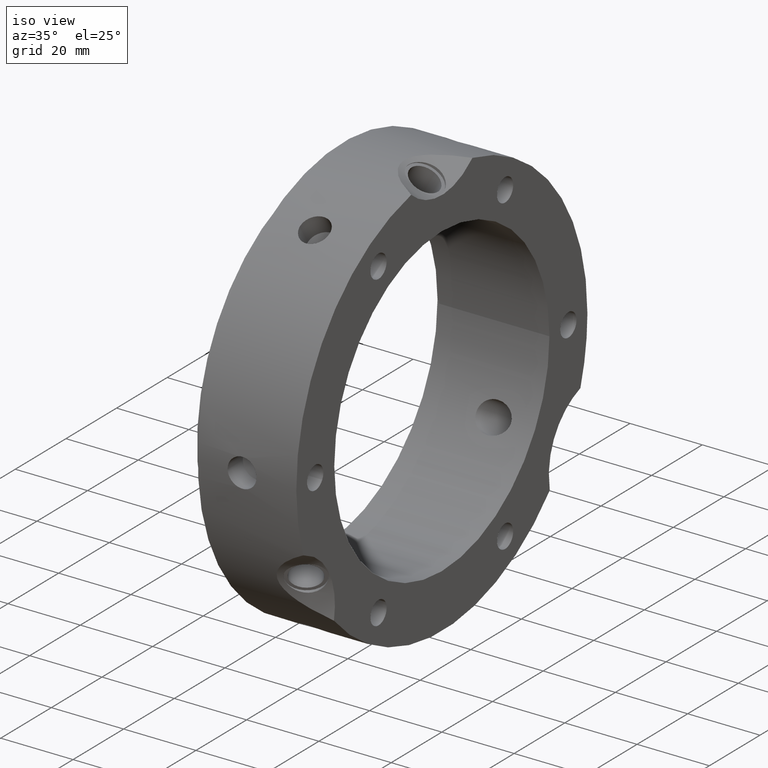
[diagram: clean part render]
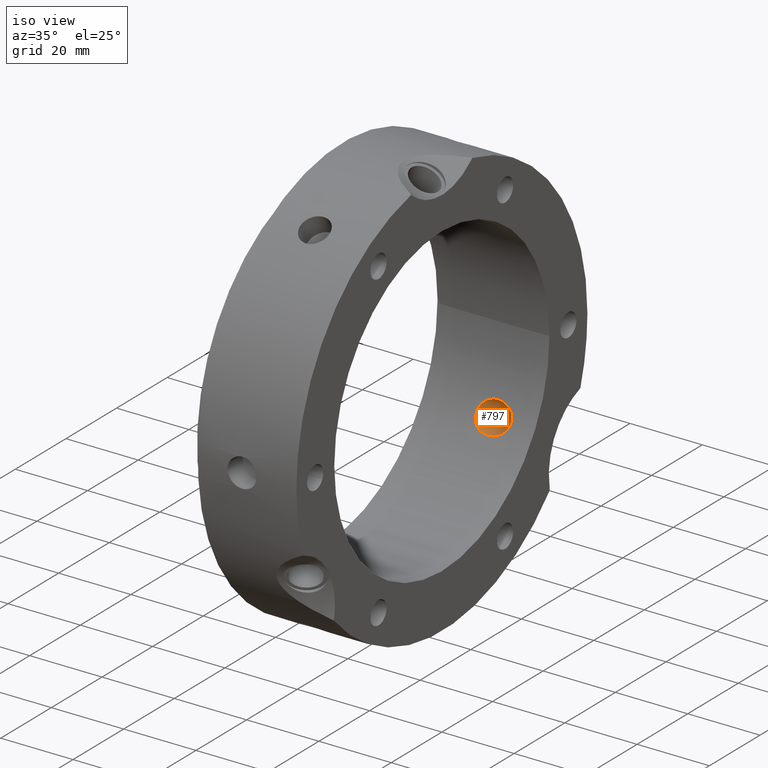
[diagram: same view with one face highlighted and labeled with its STEP entity id]
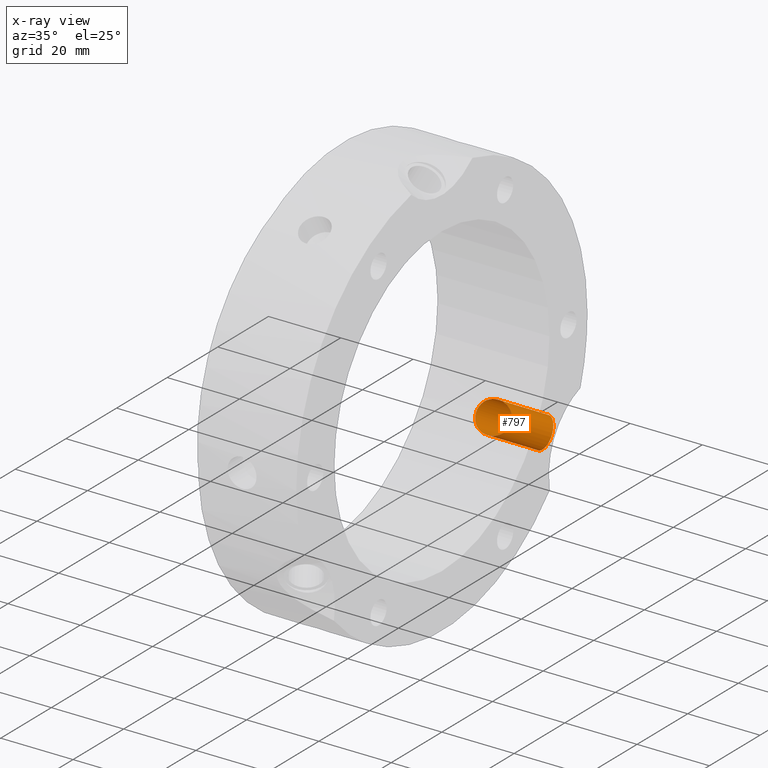
[diagram: x-ray of the same camera — body ghosted, the highlighted face saturated]
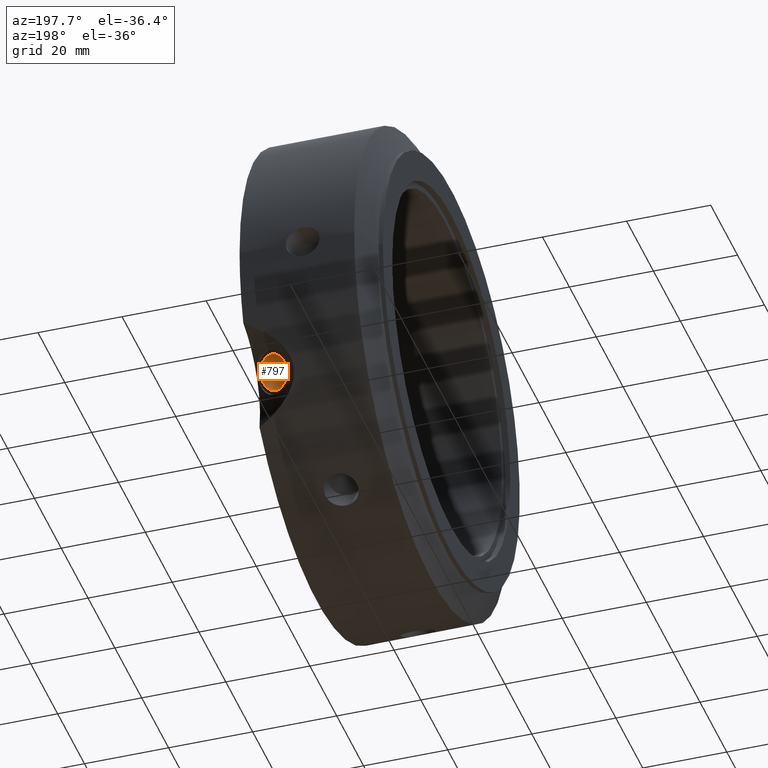
[diagram: same view with one face highlighted and labeled with its STEP entity id]
A machine part, iso view. The second image highlights one B-rep face of the part: STEP entity #797.
The next image is the same camera in x-ray: the body ghosted, the highlighted face saturated — about 0% of this face is hidden behind the body in this view.
A second angle (auxiliary view) of the same face is appended — the face is thin or edge-on in the first view.
In plain terms, the highlighted cylindrical surface (bore or boss wall) has radius 4.188 mm, axis along (0.5, 0.75, -0.433).
Its self-contained STEP definition (entity closure, byte-faithful):
#740=CARTESIAN_POINT('',(22.750000000000018,40.124999999999972,-23.16617955123375));
#741=DIRECTION('',(0.500000000000001,0.75,-0.43301270189222));
#742=DIRECTION('',(0.0,-0.5,-0.866025403784438));
#743=AXIS2_PLACEMENT_3D('',#740,#741,#742);
#744=CYLINDRICAL_SURFACE('',#743,4.188000000000001);
#745=CARTESIAN_POINT('',(20.417962350149821,38.720943525224698,-17.519661312832497));
#746=VERTEX_POINT('',#745);
#747=CARTESIAN_POINT('',(20.417962350149821,38.720943525224698,-17.519661312832497));
#748=CARTESIAN_POINT('',(21.017247514247597,38.720943525224698,-17.519661312832497));
#749=CARTESIAN_POINT('',(21.662075313614761,38.679213263408528,-17.612870104094252));
#750=CARTESIAN_POINT('',(22.872485619570135,38.502002351308633,-17.996959384890094));
#751=CARTESIAN_POINT('',(23.438097019090772,38.366164843012044,-18.287584048892644));
#752=CARTESIAN_POINT('',(24.318528060353568,38.04235863176104,-18.951354552950836));
#753=CARTESIAN_POINT('',(24.705702527076973,37.83792748251777,-19.359917704472327));
#754=CARTESIAN_POINT('',(25.233709605421758,37.357743194340081,-20.271018588498873));
#755=CARTESIAN_POINT('',(25.373272295291429,37.081024009314952,-20.773782419185117));
#756=CARTESIAN_POINT('',(25.373272295291429,36.531135312362316,-21.726217580814918));
#757=CARTESIAN_POINT('',(25.233709605421765,36.234088655396619,-22.217245340104338));
#758=CARTESIAN_POINT('',(24.70570252707698,35.685144288508013,-23.088647574177635));
#759=CARTESIAN_POINT('',(24.318528060353568,35.433533794861802,-23.469971718507896));
#760=CARTESIAN_POINT('',(23.438097019090772,35.020594781690107,-24.082281375383559));
#761=CARTESIAN_POINT('',(22.872485619570138,34.836825193845876,-24.345232440356458));
#762=CARTESIAN_POINT('',(21.662075313614761,34.59279957540533,-24.690746232460704));
#763=CARTESIAN_POINT('',(21.017247514247597,34.532943525224688,-24.773490094930949));
#764=CARTESIAN_POINT('',(19.817306200723731,34.532943525224688,-24.773490094930949));
#765=CARTESIAN_POINT('',(19.170911814085283,34.59343052638777,-24.68995520555611));
#766=CARTESIAN_POINT('',(17.971807847128151,34.849575212317887,-24.327071978618321));
#767=CARTESIAN_POINT('',(17.419293056916718,35.045131230601775,-24.047008603789713));
#768=CARTESIAN_POINT('',(16.603137215268564,35.474469600150378,-23.408116183705836));
#769=CARTESIAN_POINT('',(16.265899155382478,35.724460087320594,-23.027520154546647));
#770=CARTESIAN_POINT('',(15.815026835697441,36.260202242252298,-22.174342520539764));
#771=CARTESIAN_POINT('',(15.701500585826809,36.54546537713513,-21.701397180552668));
#772=CARTESIAN_POINT('',(15.701500585826809,37.066693944542138,-20.798602819447375));
#773=CARTESIAN_POINT('',(15.815026835697449,37.333645056131026,-20.315085027882116));
#774=CARTESIAN_POINT('',(16.265899155382481,37.804647483655828,-19.424529894829607));
#775=CARTESIAN_POINT('',(16.603137215268561,38.009258069902067,-19.01773376765615));
#776=CARTESIAN_POINT('',(17.419293056916715,38.347885951205718,-18.326469622765728));
#777=CARTESIAN_POINT('',(17.971807847128147,38.492649939334953,-18.017081455654644));
#778=CARTESIAN_POINT('',(19.170911814085283,38.6788436895053,-17.613812037125879));
#779=CARTESIAN_POINT('',(19.817306200723735,38.720943525224698,-17.519661312832497));
#780=CARTESIAN_POINT('',(20.417962350149828,38.720943525224698,-17.519661312832497));
#781=B_SPLINE_CURVE_WITH_KNOTS('',3,(#747,#748,#749,#750,#751,#752,#753,#754,#755,#756,#757,#758,#759,#760,#761,#762,#763,#764,#765,#766,#767,#768,#769,#770,#771,#772,#773,#774,#775,#776,#777,#778,#779,#780),.UNSPECIFIED.,.T.,.U.,(4,2,2,2,2,2,2,2,2,2,2,2,2,2,2,2,4),(0.0,0.179785549229332,0.359571098458665,0.524537707544453,0.689504316630242,0.854470925716031,1.01943753480182,1.199223084031153,1.379008633260485,1.559205478088312,1.739402322916138,1.895770893138244,2.052139463360349,2.208508033582453,2.364876603804558,2.545073448632385,2.725270293460212),.UNSPECIFIED.);
#782=EDGE_CURVE('',#746,#746,#781,.T.);
#783=ORIENTED_EDGE('',*,*,#782,.F.);
#784=EDGE_LOOP('',(#783));
#785=FACE_OUTER_BOUND('',#784,.T.);
#786=CARTESIAN_POINT('',(27.250000000000021,44.78099999999997,-30.690208259312953));
#787=VERTEX_POINT('',#786);
#788=CARTESIAN_POINT('',(27.250000000000028,46.874999999999972,-27.063293868263724));
#789=DIRECTION('',(0.500000000000001,0.75,-0.43301270189222));
#790=DIRECTION('',(0.0,-0.5,-0.866025403784438));
#791=AXIS2_PLACEMENT_3D('',#788,#789,#790);
#792=CIRCLE('',#791,4.188000000000001);
#793=EDGE_CURVE('',#787,#787,#792,.T.);
#794=ORIENTED_EDGE('',*,*,#793,.T.);
#795=EDGE_LOOP('',(#794));
#796=FACE_BOUND('',#795,.T.);
#797=ADVANCED_FACE('',(#785,#796),#744,.F.);